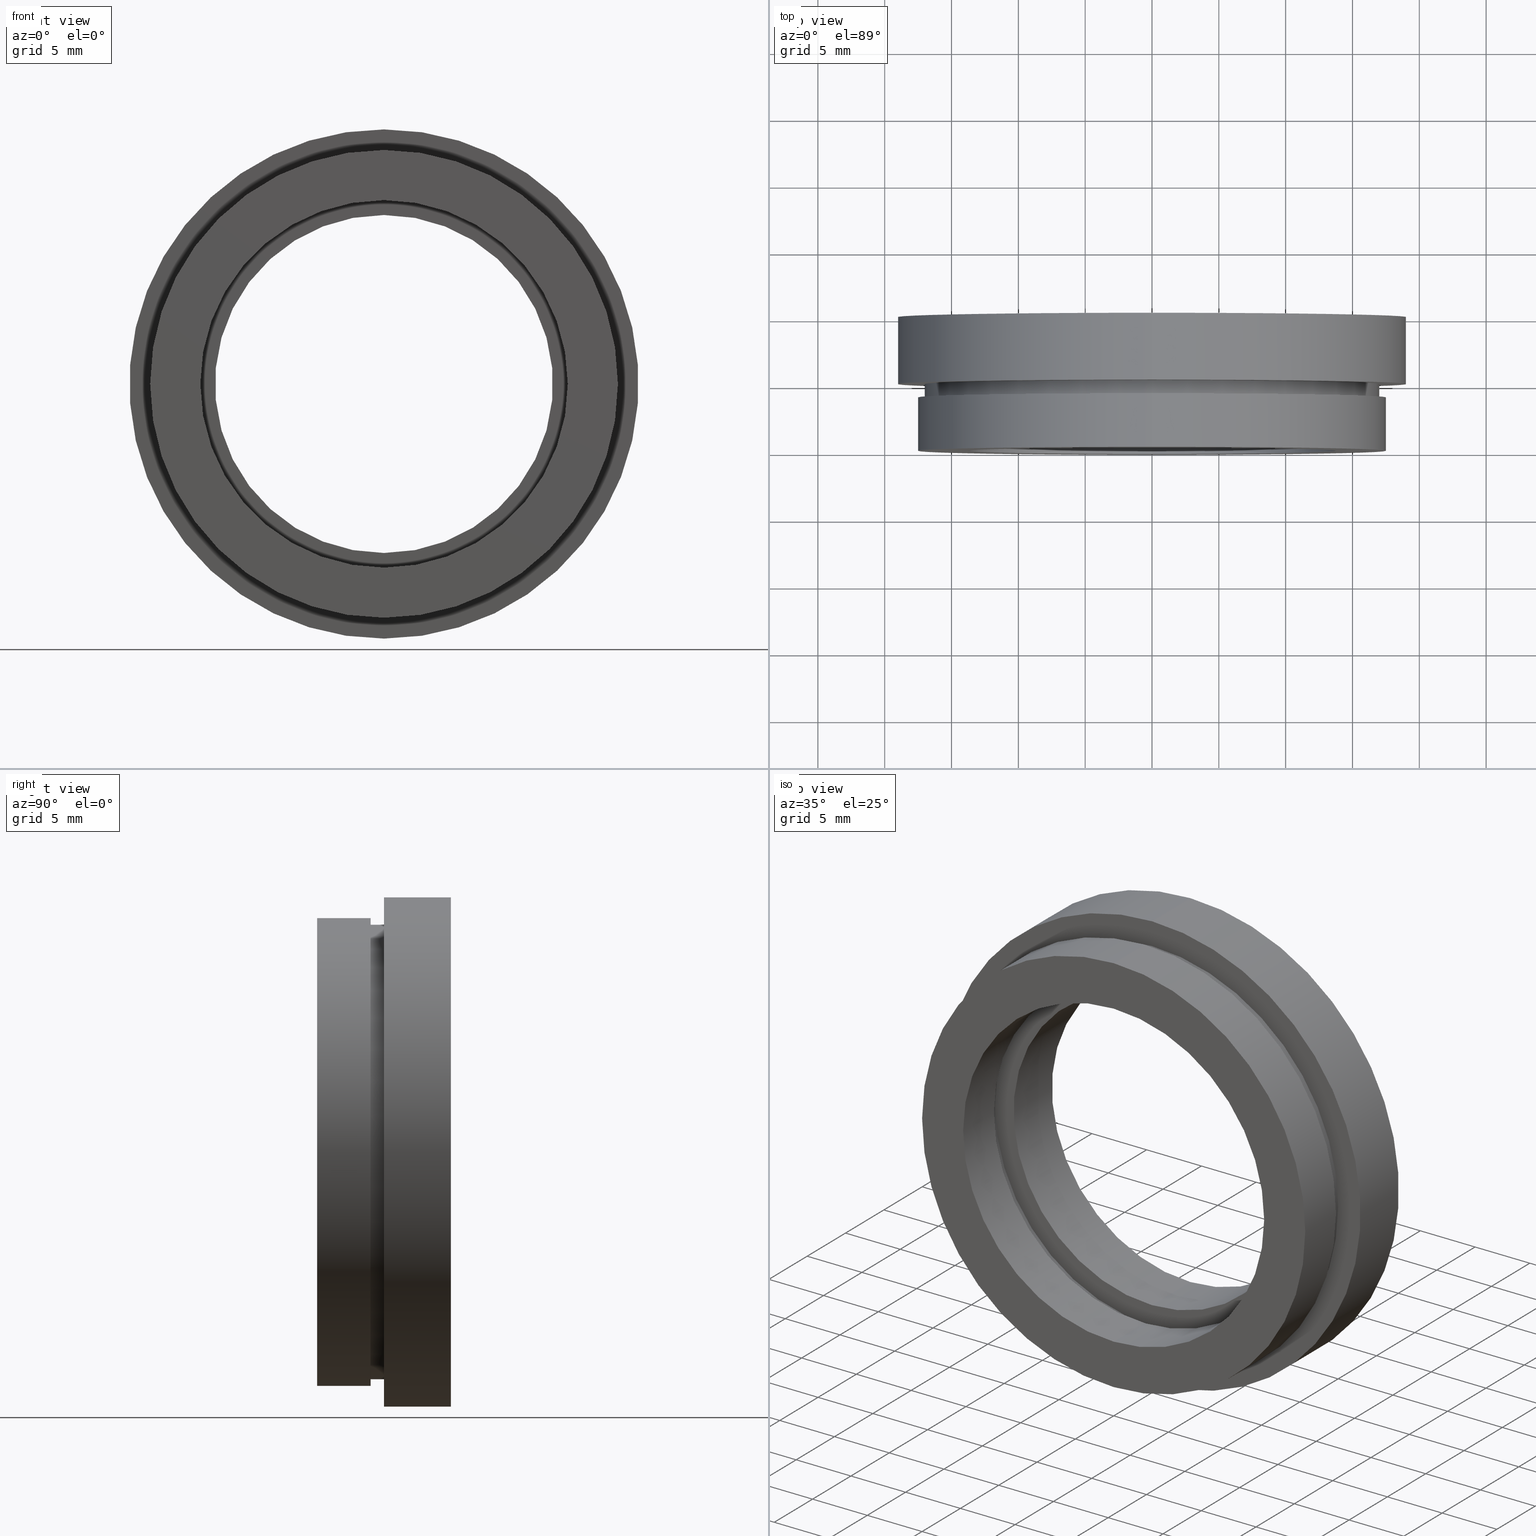
[diagram: canonical four-view strip — front | top / right | iso, engineering-drawing reading convention]
A machine part, canonical four-view strip (front | top / right | iso — engineering-drawing reading convention). The complete STEP part file that produces these views, byte-faithful:
ISO-10303-21;
HEADER;
FILE_DESCRIPTION (( 'STEP AP214' ),
    '1' );
FILE_NAME ('504121.STEP',
    '2019-10-10T07:21:21',
    ( 'user' ),
    ( '΢���й�' ),
    'SwSTEP 2.0',
    'SolidWorks 2016',
    '' );
FILE_SCHEMA (( 'AUTOMOTIVE_DESIGN' ));
ENDSEC;

DATA;
#1 = CARTESIAN_POINT ( 'NONE',  ( 0.0000000000000000000, 5.000000000000000900, 0.0000000000000000000 ) ) ;
#2 = EDGE_CURVE ( 'NONE', #239, #167, #583, .T. ) ;
#3 = ORIENTED_EDGE ( 'NONE', *, *, #417, .T. ) ;
#4 = EDGE_CURVE ( 'NONE', #142, #464, #544, .T. ) ;
#5 = ORIENTED_EDGE ( 'NONE', *, *, #614, .T. ) ;
#6 = DIRECTION ( 'NONE',  ( 0.0000000000000000000, -0.0000000000000000000, -1.000000000000000000 ) ) ;
#7 = AXIS2_PLACEMENT_3D ( 'NONE', #363, #478, #6 ) ;
#8 = CARTESIAN_POINT ( 'NONE',  ( 0.0000000000000000000, 9.999999999999998200, 0.0000000000000000000 ) ) ;
#9 = VECTOR ( 'NONE', #187, 1000.000000000000000 ) ;
#10 = SURFACE_STYLE_USAGE ( .BOTH. , #26 ) ;
#11 = ORIENTED_EDGE ( 'NONE', *, *, #381, .T. ) ;
#12 = EDGE_LOOP ( 'NONE', ( #241, #168, #47, #406 ) ) ;
#13 = ADVANCED_FACE ( 'NONE', ( #612, #594 ), #385, .F. ) ;
#14 = CARTESIAN_POINT ( 'NONE',  ( 0.0000000000000000000, 13.74468085106383300, 0.0000000000000000000 ) ) ;
#15 = CARTESIAN_POINT ( 'NONE',  ( 1.683889348827611000E-015, 13.74468085106383300, -13.75000000000000200 ) ) ;
#16 = PRESENTATION_STYLE_ASSIGNMENT (( #549 ) ) ;
#17 = EDGE_CURVE ( 'NONE', #88, #429, #117, .T. ) ;
#18 = COLOUR_RGB ( '',1.000000000000000000, 1.000000000000000000, 1.000000000000000000 ) ;
#19 = CARTESIAN_POINT ( 'NONE',  ( 0.0000000000000000000, 5.000000000000000900, 0.0000000000000000000 ) ) ;
#20 =( GEOMETRIC_REPRESENTATION_CONTEXT ( 3 ) GLOBAL_UNCERTAINTY_ASSIGNED_CONTEXT ( ( #338 ) ) GLOBAL_UNIT_ASSIGNED_CONTEXT ( ( #231, #219, #382 ) ) REPRESENTATION_CONTEXT ( 'NONE', 'WORKASPACE' ) );
#21 = EDGE_LOOP ( 'NONE', ( #393, #261, #398, #172 ) ) ;
#22 = DIRECTION ( 'NONE',  ( 0.0000000000000000000, 0.0000000000000000000, 1.000000000000000000 ) ) ;
#23 = ORIENTED_EDGE ( 'NONE', *, *, #577, .T. ) ;
#24 = FILL_AREA_STYLE ('',( #603 ) ) ;
#25 = DIRECTION ( 'NONE',  ( -0.0000000000000000000, 1.000000000000000000, -0.0000000000000000000 ) ) ;
#26 = SURFACE_SIDE_STYLE ('',( #162 ) ) ;
#27 = DIRECTION ( 'NONE',  ( -0.0000000000000000000, 1.000000000000000000, -0.0000000000000000000 ) ) ;
#28 = LINE ( 'NONE', #411, #504 ) ;
#29 = APPLICATION_PROTOCOL_DEFINITION ( 'draft international standard', 'automotive_design', 1998, #145 ) ;
#30 = EDGE_CURVE ( 'NONE', #269, #167, #414, .T. ) ;
#31 = UNCERTAINTY_MEASURE_WITH_UNIT (LENGTH_MEASURE( 1.000000000000000100E-005 ), #469, 'distance_accuracy_value', 'NONE');
#32 = DIRECTION ( 'NONE',  ( -0.0000000000000000000, 1.000000000000000000, -0.0000000000000000000 ) ) ;
#33 = VERTEX_POINT ( 'NONE', #484 ) ;
#34 = AXIS2_PLACEMENT_3D ( 'NONE', #189, #366, #412 ) ;
#35 = DIRECTION ( 'NONE',  ( -0.0000000000000000000, 1.000000000000000000, -0.0000000000000000000 ) ) ;
#36 = SURFACE_SIDE_STYLE ('',( #78 ) ) ;
#37 = CARTESIAN_POINT ( 'NONE',  ( 0.0000000000000000000, 13.74468085106383300, 19.05000000000000400 ) ) ;
#38 = DIRECTION ( 'NONE',  ( 0.0000000000000000000, 0.0000000000000000000, 1.000000000000000000 ) ) ;
#39 = CARTESIAN_POINT ( 'NONE',  ( 2.332952152375708400E-015, 9.999999999999998200, -19.05000000000000400 ) ) ;
#40 = SURFACE_STYLE_FILL_AREA ( #319 ) ;
#41 = COLOUR_RGB ( '',1.000000000000000000, 1.000000000000000000, 1.000000000000000000 ) ;
#42 = DIRECTION ( 'NONE',  ( 0.0000000000000000000, 0.0000000000000000000, 1.000000000000000000 ) ) ;
#43 = DIRECTION ( 'NONE',  ( 0.0000000000000000000, -1.000000000000000000, 0.0000000000000000000 ) ) ;
#44 = ADVANCED_BREP_SHAPE_REPRESENTATION ( '504121', ( #463, #212 ), #66 ) ;
#45 = ORIENTED_EDGE ( 'NONE', *, *, #534, .F. ) ;
#46 = LINE ( 'NONE', #444, #361 ) ;
#47 = ORIENTED_EDGE ( 'NONE', *, *, #509, .T. ) ;
#48 = EDGE_CURVE ( 'NONE', #343, #203, #419, .T. ) ;
#49 = EDGE_CURVE ( 'NONE', #539, #33, #46, .T. ) ;
#50 = SURFACE_SIDE_STYLE ('',( #40 ) ) ;
#51 = CIRCLE ( 'NONE', #446, 17.50000000000000000 ) ;
#52 = AXIS2_PLACEMENT_3D ( 'NONE', #19, #522, #22 ) ;
#53 =( NAMED_UNIT ( * ) PLANE_ANGLE_UNIT ( ) SI_UNIT ( $, .RADIAN. ) );
#54 = CIRCLE ( 'NONE', #317, 17.00000000000000000 ) ;
#55 =( NAMED_UNIT ( * ) SI_UNIT ( $, .STERADIAN. ) SOLID_ANGLE_UNIT ( ) );
#56 = PRODUCT_RELATED_PRODUCT_CATEGORY ( 'part', '', ( #475 ) ) ;
#57 = PRESENTATION_STYLE_ASSIGNMENT (( #431 ) ) ;
#58 = ORIENTED_EDGE ( 'NONE', *, *, #71, .F. ) ;
#59 = CARTESIAN_POINT ( 'NONE',  ( 0.0000000000000000000, 9.999999999999998200, 0.0000000000000000000 ) ) ;
#60 = DIRECTION ( 'NONE',  ( 0.0000000000000000000, 0.0000000000000000000, 1.000000000000000000 ) ) ;
#61 = CIRCLE ( 'NONE', #513, 17.50000000000000000 ) ;
#62 = EDGE_LOOP ( 'NONE', ( #3, #165, #311, #126 ) ) ;
#63 = SURFACE_STYLE_FILL_AREA ( #540 ) ;
#64 = AXIS2_PLACEMENT_3D ( 'NONE', #257, #537, #572 ) ;
#65 = CARTESIAN_POINT ( 'NONE',  ( 0.0000000000000000000, 4.000000000000000000, 0.0000000000000000000 ) ) ;
#66 =( GEOMETRIC_REPRESENTATION_CONTEXT ( 3 ) GLOBAL_UNCERTAINTY_ASSIGNED_CONTEXT ( ( #354 ) ) GLOBAL_UNIT_ASSIGNED_CONTEXT ( ( #221, #238, #602 ) ) REPRESENTATION_CONTEXT ( 'NONE', 'WORKASPACE' ) );
#67 = CARTESIAN_POINT ( 'NONE',  ( 0.0000000000000000000, -1.734723475976807100E-015, 0.0000000000000000000 ) ) ;
#68 = DIRECTION ( 'NONE',  ( 0.0000000000000000000, 0.0000000000000000000, 1.000000000000000000 ) ) ;
#69 = CARTESIAN_POINT ( 'NONE',  ( 0.0000000000000000000, 0.0000000000000000000, 0.0000000000000000000 ) ) ;
#70 = EDGE_CURVE ( 'NONE', #107, #464, #61, .T. ) ;
#71 = EDGE_CURVE ( 'NONE', #90, #609, #423, .T. ) ;
#72 = ORIENTED_EDGE ( 'NONE', *, *, #4, .F. ) ;
#73 = ADVANCED_FACE ( 'NONE', ( #163, #518 ), #480, .F. ) ;
#74 = DIRECTION ( 'NONE',  ( 0.0000000000000000000, 0.0000000000000000000, 1.000000000000000000 ) ) ;
#75 = PRESENTATION_LAYER_ASSIGNMENT (  '', '', ( #535 ) ) ;
#76 = ADVANCED_FACE ( 'NONE', ( #352 ), #325, .T. ) ;
#77 = FACE_OUTER_BOUND ( 'NONE', #62, .T. ) ;
#78 = SURFACE_STYLE_FILL_AREA ( #438 ) ;
#79 = COLOUR_RGB ( '',1.000000000000000000, 1.000000000000000000, 1.000000000000000000 ) ;
#80 = STYLED_ITEM ( 'NONE', ( #16 ), #463 ) ;
#81 = CARTESIAN_POINT ( 'NONE',  ( 0.0000000000000000000, 13.74468085106383300, 13.75000000000000200 ) ) ;
#82 = EDGE_LOOP ( 'NONE', ( #456, #415 ) ) ;
#83 = CARTESIAN_POINT ( 'NONE',  ( 1.757368156776451600E-015, 4.999999999999999100, -14.35000000000000000 ) ) ;
#84 = EDGE_CURVE ( 'NONE', #343, #204, #140, .T. ) ;
#85 = CIRCLE ( 'NONE', #349, 12.64500000000000100 ) ;
#86 =( GEOMETRIC_REPRESENTATION_CONTEXT ( 3 ) GLOBAL_UNCERTAINTY_ASSIGNED_CONTEXT ( ( #560 ) ) GLOBAL_UNIT_ASSIGNED_CONTEXT ( ( #591, #330, #227 ) ) REPRESENTATION_CONTEXT ( 'NONE', 'WORKASPACE' ) );
#87 = UNCERTAINTY_MEASURE_WITH_UNIT (LENGTH_MEASURE( 1.000000000000000100E-005 ), #427, 'distance_accuracy_value', 'NONE');
#88 = VERTEX_POINT ( 'NONE', #39 ) ;
#89 = DIRECTION ( 'NONE',  ( -0.0000000000000000000, 1.000000000000000000, -0.0000000000000000000 ) ) ;
#90 = VERTEX_POINT ( 'NONE', #442 ) ;
#91 = PLANE ( 'NONE',  #300 ) ;
#92 = CARTESIAN_POINT ( 'NONE',  ( 0.0000000000000000000, -1.734723475976807100E-015, 13.75000000000000000 ) ) ;
#93 = AXIS2_PLACEMENT_3D ( 'NONE', #567, #121, #613 ) ;
#94 = DIRECTION ( 'NONE',  ( 0.0000000000000000000, 0.0000000000000000000, 1.000000000000000000 ) ) ;
#95 = DIRECTION ( 'NONE',  ( 1.000000000000000000, 0.0000000000000000000, 0.0000000000000000000 ) ) ;
#96 = PRESENTATION_LAYER_ASSIGNMENT (  '', '', ( #133 ) ) ;
#97 = FACE_BOUND ( 'NONE', #320, .T. ) ;
#98 = ORIENTED_EDGE ( 'NONE', *, *, #509, .F. ) ;
#99 = CYLINDRICAL_SURFACE ( 'NONE', #186, 13.75000000000000200 ) ;
#100 = ORIENTED_EDGE ( 'NONE', *, *, #500, .T. ) ;
#101 = ORIENTED_EDGE ( 'NONE', *, *, #566, .F. ) ;
#102 = EDGE_CURVE ( 'NONE', #188, #33, #200, .T. ) ;
#103 = DIRECTION ( 'NONE',  ( 0.0000000000000000000, 0.0000000000000000000, 1.000000000000000000 ) ) ;
#104 = CARTESIAN_POINT ( 'NONE',  ( 0.0000000000000000000, 4.000000000000000000, 0.0000000000000000000 ) ) ;
#105 = DIRECTION ( 'NONE',  ( -0.0000000000000000000, 1.000000000000000000, -0.0000000000000000000 ) ) ;
#106 = STYLED_ITEM ( 'NONE', ( #156 ), #280 ) ;
#107 = VERTEX_POINT ( 'NONE', #171 ) ;
#108 = ORIENTED_EDGE ( 'NONE', *, *, #70, .T. ) ;
#109 = DIRECTION ( 'NONE',  ( -0.0000000000000000000, 1.000000000000000000, -0.0000000000000000000 ) ) ;
#110 = CARTESIAN_POINT ( 'NONE',  ( 2.081899558550500300E-015, 13.74468085106383300, -17.00000000000000000 ) ) ;
#111 = SURFACE_STYLE_FILL_AREA ( #202 ) ;
#112 = DIRECTION ( 'NONE',  ( -0.0000000000000000000, 1.000000000000000000, -0.0000000000000000000 ) ) ;
#113 = DIRECTION ( 'NONE',  ( 0.0000000000000000000, 0.0000000000000000000, 1.000000000000000000 ) ) ;
#114 = EDGE_CURVE ( 'NONE', #546, #188, #396, .T. ) ;
#115 = EDGE_LOOP ( 'NONE', ( #345, #100, #620, #426 ) ) ;
#116 = FACE_OUTER_BOUND ( 'NONE', #428, .T. ) ;
#117 = CIRCLE ( 'NONE', #139, 19.05000000000000400 ) ;
#118 = EDGE_LOOP ( 'NONE', ( #378, #192 ) ) ;
#119 = MECHANICAL_DESIGN_GEOMETRIC_PRESENTATION_REPRESENTATION (  '', ( #488 ), #86 ) ;
#120 = ADVANCED_FACE ( 'NONE', ( #77 ), #323, .T. ) ;
#121 = DIRECTION ( 'NONE',  ( -0.0000000000000000000, 1.000000000000000000, -0.0000000000000000000 ) ) ;
#122 = FACE_OUTER_BOUND ( 'NONE', #461, .T. ) ;
#123 = ADVANCED_FACE ( 'NONE', ( #470 ), #99, .F. ) ;
#124 = CARTESIAN_POINT ( 'NONE',  ( 2.143131898507868200E-015, 13.74468085106383300, -17.50000000000000000 ) ) ;
#125 = VERTEX_POINT ( 'NONE', #563 ) ;
#126 = ORIENTED_EDGE ( 'NONE', *, *, #341, .F. ) ;
#127 = ADVANCED_FACE ( 'NONE', ( #250, #116 ), #581, .F. ) ;
#128 = CIRCLE ( 'NONE', #64, 13.75000000000000200 ) ;
#129 = AXIS2_PLACEMENT_3D ( 'NONE', #160, #493, #208 ) ;
#130 = DIRECTION ( 'NONE',  ( -0.0000000000000000000, 1.000000000000000000, -0.0000000000000000000 ) ) ;
#131 = DIRECTION ( 'NONE',  ( -0.0000000000000000000, 1.000000000000000000, -0.0000000000000000000 ) ) ;
#132 = CARTESIAN_POINT ( 'NONE',  ( 0.0000000000000000000, 4.999999999999999100, 0.0000000000000000000 ) ) ;
#133 = STYLED_ITEM ( 'NONE', ( #161 ), #44 ) ;
#134 = ORIENTED_EDGE ( 'NONE', *, *, #48, .F. ) ;
#135 = DIRECTION ( 'NONE',  ( -0.0000000000000000000, 1.000000000000000000, -0.0000000000000000000 ) ) ;
#136 = CYLINDRICAL_SURFACE ( 'NONE', #587, 17.00000000000000000 ) ;
#137 = ORIENTED_EDGE ( 'NONE', *, *, #450, .T. ) ;
#138 = UNCERTAINTY_MEASURE_WITH_UNIT (LENGTH_MEASURE( 1.000000000000000100E-005 ), #252, 'distance_accuracy_value', 'NONE');
#139 = AXIS2_PLACEMENT_3D ( 'NONE', #59, #35, #38 ) ;
#140 = LINE ( 'NONE', #15, #184 ) ;
#141 = ORIENTED_EDGE ( 'NONE', *, *, #534, .T. ) ;
#142 = VERTEX_POINT ( 'NONE', #309 ) ;
#143 = DIRECTION ( 'NONE',  ( -0.0000000000000000000, 1.000000000000000000, -0.0000000000000000000 ) ) ;
#144 = VERTEX_POINT ( 'NONE', #255 ) ;
#145 = APPLICATION_CONTEXT ( 'automotive_design' ) ;
#146 = PRESENTATION_LAYER_ASSIGNMENT (  '', '', ( #80 ) ) ;
#147 = CARTESIAN_POINT ( 'NONE',  ( 0.0000000000000000000, 9.999999999999998200, 0.0000000000000000000 ) ) ;
#148 = CARTESIAN_POINT ( 'NONE',  ( 0.0000000000000000000, 4.999999999999999100, 14.35000000000000000 ) ) ;
#149 = ORIENTED_EDGE ( 'NONE', *, *, #102, .T. ) ;
#150 = EDGE_CURVE ( 'NONE', #142, #157, #471, .T. ) ;
#151 = FILL_AREA_STYLE_COLOUR ( '', #79 ) ;
#152 = DIRECTION ( 'NONE',  ( -0.0000000000000000000, 1.000000000000000000, -0.0000000000000000000 ) ) ;
#153 = PRESENTATION_LAYER_ASSIGNMENT (  '', '', ( #488 ) ) ;
#154 = PRESENTATION_STYLE_ASSIGNMENT (( #10 ) ) ;
#155 = UNCERTAINTY_MEASURE_WITH_UNIT (LENGTH_MEASURE( 1.000000000000000100E-005 ), #542, 'distance_accuracy_value', 'NONE');
#156 = PRESENTATION_STYLE_ASSIGNMENT (( #337 ) ) ;
#157 = VERTEX_POINT ( 'NONE', #601 ) ;
#158 = EDGE_LOOP ( 'NONE', ( #482, #291 ) ) ;
#159 = EDGE_LOOP ( 'NONE', ( #531, #108 ) ) ;
#160 = CARTESIAN_POINT ( 'NONE',  ( 17.50000000000000000, -4.439344646909156000E-016, 0.0000000000000000000 ) ) ;
#161 = PRESENTATION_STYLE_ASSIGNMENT (( #207 ) ) ;
#162 = SURFACE_STYLE_FILL_AREA ( #384 ) ;
#163 = FACE_OUTER_BOUND ( 'NONE', #483, .T. ) ;
#164 = MECHANICAL_DESIGN_GEOMETRIC_PRESENTATION_REPRESENTATION (  '', ( #80 ), #175 ) ;
#165 = ORIENTED_EDGE ( 'NONE', *, *, #346, .T. ) ;
#166 = COLOUR_RGB ( '',1.000000000000000000, 1.000000000000000000, 1.000000000000000000 ) ;
#167 = VERTEX_POINT ( 'NONE', #83 ) ;
#168 = ORIENTED_EDGE ( 'NONE', *, *, #517, .F. ) ;
#169 = AXIS2_PLACEMENT_3D ( 'NONE', #147, #152, #284 ) ;
#170 = CYLINDRICAL_SURFACE ( 'NONE', #410, 12.64500000000000100 ) ;
#171 = CARTESIAN_POINT ( 'NONE',  ( 2.143131898507868200E-015, 4.000000000000000000, -17.50000000000000000 ) ) ;
#172 = ORIENTED_EDGE ( 'NONE', *, *, #49, .F. ) ;
#173 = ORIENTED_EDGE ( 'NONE', *, *, #283, .T. ) ;
#174 = DIRECTION ( 'NONE',  ( 0.0000000000000000000, 0.0000000000000000000, 1.000000000000000000 ) ) ;
#175 =( GEOMETRIC_REPRESENTATION_CONTEXT ( 3 ) GLOBAL_UNCERTAINTY_ASSIGNED_CONTEXT ( ( #387 ) ) GLOBAL_UNIT_ASSIGNED_CONTEXT ( ( #225, #547, #460 ) ) REPRESENTATION_CONTEXT ( 'NONE', 'WORKASPACE' ) );
#176 = CIRCLE ( 'NONE', #371, 14.35000000000000100 ) ;
#177 = COLOUR_RGB ( '',1.000000000000000000, 1.000000000000000000, 1.000000000000000000 ) ;
#178 = CIRCLE ( 'NONE', #496, 14.35000000000000100 ) ;
#179 = AXIS2_PLACEMENT_3D ( 'NONE', #1, #525, #74 ) ;
#180 = ADVANCED_FACE ( 'NONE', ( #538 ), #267, .F. ) ;
#181 = ORIENTED_EDGE ( 'NONE', *, *, #84, .T. ) ;
#182 = EDGE_CURVE ( 'NONE', #125, #90, #85, .T. ) ;
#183 = CARTESIAN_POINT ( 'NONE',  ( 0.0000000000000000000, 13.74468085106383300, 0.0000000000000000000 ) ) ;
#184 = VECTOR ( 'NONE', #25, 1000.000000000000000 ) ;
#185 = DIRECTION ( 'NONE',  ( 0.0000000000000000000, -0.0000000000000000000, -1.000000000000000000 ) ) ;
#186 = AXIS2_PLACEMENT_3D ( 'NONE', #290, #421, #553 ) ;
#187 = DIRECTION ( 'NONE',  ( -0.0000000000000000000, 1.000000000000000000, -0.0000000000000000000 ) ) ;
#188 = VERTEX_POINT ( 'NONE', #274 ) ;
#189 = CARTESIAN_POINT ( 'NONE',  ( 0.0000000000000000000, 13.74468085106383300, 0.0000000000000000000 ) ) ;
#190 = DIRECTION ( 'NONE',  ( -0.0000000000000000000, 1.000000000000000000, -0.0000000000000000000 ) ) ;
#191 = DIRECTION ( 'NONE',  ( -0.0000000000000000000, 1.000000000000000000, 0.0000000000000000000 ) ) ;
#192 = ORIENTED_EDGE ( 'NONE', *, *, #248, .F. ) ;
#193 = CARTESIAN_POINT ( 'NONE',  ( 1.757368156776452000E-015, 13.74468085106383300, -14.35000000000000100 ) ) ;
#194 = VECTOR ( 'NONE', #599, 1000.000000000000000 ) ;
#195 = DIRECTION ( 'NONE',  ( 0.0000000000000000000, 0.0000000000000000000, 1.000000000000000000 ) ) ;
#196 = PRODUCT_CONTEXT ( 'NONE', #145, 'mechanical' ) ;
#197 = STYLED_ITEM ( 'NONE', ( #530 ), #467 ) ;
#198 = DIRECTION ( 'NONE',  ( -0.0000000000000000000, 1.000000000000000000, -0.0000000000000000000 ) ) ;
#199 = MECHANICAL_DESIGN_GEOMETRIC_PRESENTATION_REPRESENTATION (  '', ( #519 ), #433 ) ;
#200 = CIRCLE ( 'NONE', #52, 17.00000000000000000 ) ;
#201 = DIRECTION ( 'NONE',  ( 0.0000000000000000000, 0.0000000000000000000, 1.000000000000000000 ) ) ;
#202 = FILL_AREA_STYLE ('',( #151 ) ) ;
#203 = VERTEX_POINT ( 'NONE', #92 ) ;
#204 = VERTEX_POINT ( 'NONE', #335 ) ;
#205 = AXIS2_PLACEMENT_3D ( 'NONE', #495, #191, #473 ) ;
#206 = APPLICATION_CONTEXT ( 'automotive_design' ) ;
#207 = SURFACE_STYLE_USAGE ( .BOTH. , #36 ) ;
#208 = DIRECTION ( 'NONE',  ( 0.0000000000000000000, 0.0000000000000000000, 1.000000000000000000 ) ) ;
#209 = FILL_AREA_STYLE_COLOUR ( '', #41 ) ;
#210 = PRESENTATION_LAYER_ASSIGNMENT (  '', '', ( #197 ) ) ;
#211 = APPLICATION_PROTOCOL_DEFINITION ( 'draft international standard', 'automotive_design', 1998, #206 ) ;
#212 = AXIS2_PLACEMENT_3D ( 'NONE', #402, #201, #95 ) ;
#213 = ORIENTED_EDGE ( 'NONE', *, *, #251, .T. ) ;
#214 = PRODUCT_DEFINITION_SHAPE ( 'NONE', 'NONE',  #230 ) ;
#215 = EDGE_CURVE ( 'NONE', #539, #546, #54, .T. ) ;
#216 = FACE_OUTER_BOUND ( 'NONE', #115, .T. ) ;
#217 = SURFACE_SIDE_STYLE ('',( #339 ) ) ;
#218 = ORIENTED_EDGE ( 'NONE', *, *, #150, .T. ) ;
#219 =( NAMED_UNIT ( * ) PLANE_ANGLE_UNIT ( ) SI_UNIT ( $, .RADIAN. ) );
#220 = PLANE ( 'NONE',  #454 ) ;
#221 =( LENGTH_UNIT ( ) NAMED_UNIT ( * ) SI_UNIT ( .MILLI., .METRE. ) );
#222 =( NAMED_UNIT ( * ) SI_UNIT ( $, .STERADIAN. ) SOLID_ANGLE_UNIT ( ) );
#223 = DIRECTION ( 'NONE',  ( 0.0000000000000000000, 0.0000000000000000000, 1.000000000000000000 ) ) ;
#224 = ORIENTED_EDGE ( 'NONE', *, *, #4, .T. ) ;
#225 =( LENGTH_UNIT ( ) NAMED_UNIT ( * ) SI_UNIT ( .MILLI., .METRE. ) );
#226 = MECHANICAL_DESIGN_GEOMETRIC_PRESENTATION_REPRESENTATION (  '', ( #197 ), #242 ) ;
#227 =( NAMED_UNIT ( * ) SI_UNIT ( $, .STERADIAN. ) SOLID_ANGLE_UNIT ( ) );
#228 = ADVANCED_FACE ( 'NONE', ( #436, #554 ), #220, .F. ) ;
#229 = CIRCLE ( 'NONE', #408, 19.05000000000000400 ) ;
#230 = PRODUCT_DEFINITION ( 'δ֪', '', #364, #365 ) ;
#231 =( LENGTH_UNIT ( ) NAMED_UNIT ( * ) SI_UNIT ( .MILLI., .METRE. ) );
#232 = CARTESIAN_POINT ( 'NONE',  ( 0.0000000000000000000, 4.000000000000000000, 17.00000000000000000 ) ) ;
#233 = ORIENTED_EDGE ( 'NONE', *, *, #523, .F. ) ;
#234 = ORIENTED_EDGE ( 'NONE', *, *, #312, .T. ) ;
#235 = DIRECTION ( 'NONE',  ( 0.0000000000000000000, 0.0000000000000000000, 1.000000000000000000 ) ) ;
#236 = DIRECTION ( 'NONE',  ( -0.0000000000000000000, 1.000000000000000000, -0.0000000000000000000 ) ) ;
#237 = AXIS2_PLACEMENT_3D ( 'NONE', #243, #597, #619 ) ;
#238 =( NAMED_UNIT ( * ) PLANE_ANGLE_UNIT ( ) SI_UNIT ( $, .RADIAN. ) );
#239 = VERTEX_POINT ( 'NONE', #344 ) ;
#240 = DIRECTION ( 'NONE',  ( -0.0000000000000000000, 1.000000000000000000, -0.0000000000000000000 ) ) ;
#241 = ORIENTED_EDGE ( 'NONE', *, *, #2, .F. ) ;
#242 =( GEOMETRIC_REPRESENTATION_CONTEXT ( 3 ) GLOBAL_UNCERTAINTY_ASSIGNED_CONTEXT ( ( #271 ) ) GLOBAL_UNIT_ASSIGNED_CONTEXT ( ( #404, #590, #622 ) ) REPRESENTATION_CONTEXT ( 'NONE', 'WORKASPACE' ) );
#243 = CARTESIAN_POINT ( 'NONE',  ( 0.0000000000000000000, 4.999999999999999100, 0.0000000000000000000 ) ) ;
#244 = CARTESIAN_POINT ( 'NONE',  ( 0.0000000000000000000, 5.000000000000000900, 0.0000000000000000000 ) ) ;
#245 = FACE_BOUND ( 'NONE', #407, .T. ) ;
#246 = DIRECTION ( 'NONE',  ( -0.0000000000000000000, 1.000000000000000000, 0.0000000000000000000 ) ) ;
#247 = SURFACE_STYLE_USAGE ( .BOTH. , #564 ) ;
#248 = EDGE_CURVE ( 'NONE', #157, #142, #298, .T. ) ;
#249 = ORIENTED_EDGE ( 'NONE', *, *, #48, .T. ) ;
#250 = FACE_BOUND ( 'NONE', #310, .T. ) ;
#251 = EDGE_CURVE ( 'NONE', #33, #188, #611, .T. ) ;
#252 =( LENGTH_UNIT ( ) NAMED_UNIT ( * ) SI_UNIT ( .MILLI., .METRE. ) );
#253 = ORIENTED_EDGE ( 'NONE', *, *, #566, .T. ) ;
#254 = CARTESIAN_POINT ( 'NONE',  ( 0.0000000000000000000, 5.000000000000000900, 0.0000000000000000000 ) ) ;
#255 = CARTESIAN_POINT ( 'NONE',  ( 2.332952152375708400E-015, 5.000000000000000900, -19.05000000000000400 ) ) ;
#256 = AXIS2_PLACEMENT_3D ( 'NONE', #69, #374, #68 ) ;
#257 = CARTESIAN_POINT ( 'NONE',  ( 0.0000000000000000000, 4.000000000000000000, 0.0000000000000000000 ) ) ;
#258 = CARTESIAN_POINT ( 'NONE',  ( 0.0000000000000000000, 0.0000000000000000000, 0.0000000000000000000 ) ) ;
#259 = DIRECTION ( 'NONE',  ( -0.0000000000000000000, 1.000000000000000000, -0.0000000000000000000 ) ) ;
#260 = VERTEX_POINT ( 'NONE', #390 ) ;
#261 = ORIENTED_EDGE ( 'NONE', *, *, #114, .T. ) ;
#262 = FACE_OUTER_BOUND ( 'NONE', #159, .T. ) ;
#263 = COLOUR_RGB ( '',1.000000000000000000, 1.000000000000000000, 1.000000000000000000 ) ;
#264 = AXIS2_PLACEMENT_3D ( 'NONE', #575, #448, #94 ) ;
#265 = DIRECTION ( 'NONE',  ( -0.0000000000000000000, 1.000000000000000000, -0.0000000000000000000 ) ) ;
#266 = SURFACE_SIDE_STYLE ('',( #63 ) ) ;
#267 = CYLINDRICAL_SURFACE ( 'NONE', #359, 14.35000000000000100 ) ;
#268 = EDGE_LOOP ( 'NONE', ( #521, #11 ) ) ;
#269 = VERTEX_POINT ( 'NONE', #148 ) ;
#270 = DIRECTION ( 'NONE',  ( 0.0000000000000000000, 0.0000000000000000000, 1.000000000000000000 ) ) ;
#271 = UNCERTAINTY_MEASURE_WITH_UNIT (LENGTH_MEASURE( 1.000000000000000100E-005 ), #404, 'distance_accuracy_value', 'NONE');
#272 = ADVANCED_FACE ( 'NONE', ( #459 ), #136, .T. ) ;
#273 = ORIENTED_EDGE ( 'NONE', *, *, #589, .F. ) ;
#274 = CARTESIAN_POINT ( 'NONE',  ( 2.081899558550500300E-015, 5.000000000000000900, -17.00000000000000000 ) ) ;
#275 = AXIS2_PLACEMENT_3D ( 'NONE', #183, #135, #42 ) ;
#276 = ADVANCED_FACE ( 'NONE', ( #570 ), #316, .F. ) ;
#277 = VECTOR ( 'NONE', #259, 1000.000000000000000 ) ;
#278 = COLOUR_RGB ( '',1.000000000000000000, 1.000000000000000000, 1.000000000000000000 ) ;
#279 = DIRECTION ( 'NONE',  ( 0.0000000000000000000, 0.0000000000000000000, 1.000000000000000000 ) ) ;
#280 = ADVANCED_FACE ( 'NONE', ( #499 ), #455, .F. ) ;
#281 = SURFACE_SIDE_STYLE ('',( #111 ) ) ;
#282 = ORIENTED_EDGE ( 'NONE', *, *, #472, .F. ) ;
#283 = EDGE_CURVE ( 'NONE', #400, #204, #498, .T. ) ;
#284 = DIRECTION ( 'NONE',  ( 0.0000000000000000000, 0.0000000000000000000, 1.000000000000000000 ) ) ;
#285 = COLOUR_RGB ( '',1.000000000000000000, 1.000000000000000000, 1.000000000000000000 ) ;
#286 =( GEOMETRIC_REPRESENTATION_CONTEXT ( 3 ) GLOBAL_UNCERTAINTY_ASSIGNED_CONTEXT ( ( #155 ) ) GLOBAL_UNIT_ASSIGNED_CONTEXT ( ( #542, #53, #492 ) ) REPRESENTATION_CONTEXT ( 'NONE', 'WORKASPACE' ) );
#287 = FILL_AREA_STYLE_COLOUR ( '', #177 ) ;
#288 = ORIENTED_EDGE ( 'NONE', *, *, #215, .F. ) ;
#289 = DIRECTION ( 'NONE',  ( -0.0000000000000000000, 1.000000000000000000, -0.0000000000000000000 ) ) ;
#290 = CARTESIAN_POINT ( 'NONE',  ( 0.0000000000000000000, 13.74468085106383300, 0.0000000000000000000 ) ) ;
#291 = ORIENTED_EDGE ( 'NONE', *, *, #450, .F. ) ;
#292 = DIRECTION ( 'NONE',  ( -0.0000000000000000000, 1.000000000000000000, -0.0000000000000000000 ) ) ;
#293 = CARTESIAN_POINT ( 'NONE',  ( 0.0000000000000000000, 13.74468085106383300, 17.50000000000000000 ) ) ;
#294 = VECTOR ( 'NONE', #487, 1000.000000000000000 ) ;
#295 = DIRECTION ( 'NONE',  ( 0.0000000000000000000, 0.0000000000000000000, 1.000000000000000000 ) ) ;
#296 = EDGE_LOOP ( 'NONE', ( #213, #149 ) ) ;
#297 = DIRECTION ( 'NONE',  ( -0.0000000000000000000, 1.000000000000000000, -0.0000000000000000000 ) ) ;
#298 = CIRCLE ( 'NONE', #388, 17.50000000000000000 ) ;
#299 = EDGE_LOOP ( 'NONE', ( #392, #360, #253, #98 ) ) ;
#300 = AXIS2_PLACEMENT_3D ( 'NONE', #541, #370, #329 ) ;
#301 = MECHANICAL_DESIGN_GEOMETRIC_PRESENTATION_REPRESENTATION (  '', ( #133 ), #308 ) ;
#302 = DIRECTION ( 'NONE',  ( -0.0000000000000000000, 1.000000000000000000, -0.0000000000000000000 ) ) ;
#303 = DIRECTION ( 'NONE',  ( 0.0000000000000000000, 0.0000000000000000000, 1.000000000000000000 ) ) ;
#304 = ORIENTED_EDGE ( 'NONE', *, *, #347, .T. ) ;
#305 = DIRECTION ( 'NONE',  ( 0.0000000000000000000, 0.0000000000000000000, 1.000000000000000000 ) ) ;
#306 = LINE ( 'NONE', #81, #294 ) ;
#307 = PRESENTATION_LAYER_ASSIGNMENT (  '', '', ( #106 ) ) ;
#308 =( GEOMETRIC_REPRESENTATION_CONTEXT ( 3 ) GLOBAL_UNCERTAINTY_ASSIGNED_CONTEXT ( ( #31 ) ) GLOBAL_UNIT_ASSIGNED_CONTEXT ( ( #469, #340, #318 ) ) REPRESENTATION_CONTEXT ( 'NONE', 'WORKASPACE' ) );
#309 = CARTESIAN_POINT ( 'NONE',  ( 0.0000000000000000000, 0.0000000000000000000, 17.50000000000000000 ) ) ;
#310 = EDGE_LOOP ( 'NONE', ( #273, #45 ) ) ;
#311 = ORIENTED_EDGE ( 'NONE', *, *, #551, .F. ) ;
#312 = EDGE_CURVE ( 'NONE', #144, #445, #506, .T. ) ;
#313 = CIRCLE ( 'NONE', #169, 12.64500000000000100 ) ;
#314 = CIRCLE ( 'NONE', #543, 17.00000000000000000 ) ;
#315 = DIRECTION ( 'NONE',  ( -0.0000000000000000000, 1.000000000000000000, -0.0000000000000000000 ) ) ;
#316 = CYLINDRICAL_SURFACE ( 'NONE', #342, 13.75000000000000200 ) ;
#317 = AXIS2_PLACEMENT_3D ( 'NONE', #373, #292, #174 ) ;
#318 =( NAMED_UNIT ( * ) SI_UNIT ( $, .STERADIAN. ) SOLID_ANGLE_UNIT ( ) );
#319 = FILL_AREA_STYLE ('',( #600 ) ) ;
#320 = EDGE_LOOP ( 'NONE', ( #326, #249 ) ) ;
#321 = VECTOR ( 'NONE', #596, 1000.000000000000000 ) ;
#322 = SURFACE_STYLE_FILL_AREA ( #394 ) ;
#323 = CYLINDRICAL_SURFACE ( 'NONE', #556, 19.05000000000000400 ) ;
#324 = CYLINDRICAL_SURFACE ( 'NONE', #264, 19.05000000000000400 ) ;
#325 = CYLINDRICAL_SURFACE ( 'NONE', #34, 17.50000000000000000 ) ;
#326 = ORIENTED_EDGE ( 'NONE', *, *, #585, .T. ) ;
#327 = ORIENTED_EDGE ( 'NONE', *, *, #84, .F. ) ;
#328 = ADVANCED_FACE ( 'NONE', ( #424 ), #324, .T. ) ;
#329 = DIRECTION ( 'NONE',  ( 0.0000000000000000000, -0.0000000000000000000, -1.000000000000000000 ) ) ;
#330 =( NAMED_UNIT ( * ) PLANE_ANGLE_UNIT ( ) SI_UNIT ( $, .RADIAN. ) );
#331 = PRESENTATION_LAYER_ASSIGNMENT (  '', '', ( #519 ) ) ;
#332 = CIRCLE ( 'NONE', #458, 13.75000000000000000 ) ;
#333 = PRESENTATION_STYLE_ASSIGNMENT (( #367 ) ) ;
#334 = DIRECTION ( 'NONE',  ( 0.0000000000000000000, 0.0000000000000000000, 1.000000000000000000 ) ) ;
#335 = CARTESIAN_POINT ( 'NONE',  ( 1.683889348827611000E-015, 4.000000000000000000, -13.75000000000000200 ) ) ;
#336 = ORIENTED_EDGE ( 'NONE', *, *, #500, .F. ) ;
#337 = SURFACE_STYLE_USAGE ( .BOTH. , #353 ) ;
#338 = UNCERTAINTY_MEASURE_WITH_UNIT (LENGTH_MEASURE( 1.000000000000000100E-005 ), #231, 'distance_accuracy_value', 'NONE');
#339 = SURFACE_STYLE_FILL_AREA ( #586 ) ;
#340 =( NAMED_UNIT ( * ) PLANE_ANGLE_UNIT ( ) SI_UNIT ( $, .RADIAN. ) );
#341 = EDGE_CURVE ( 'NONE', #445, #429, #358, .T. ) ;
#342 = AXIS2_PLACEMENT_3D ( 'NONE', #520, #481, #103 ) ;
#343 = VERTEX_POINT ( 'NONE', #486 ) ;
#344 = CARTESIAN_POINT ( 'NONE',  ( 1.757368156776452000E-015, 4.000000000000000000, -14.35000000000000100 ) ) ;
#345 = ORIENTED_EDGE ( 'NONE', *, *, #114, .F. ) ;
#346 = EDGE_CURVE ( 'NONE', #144, #88, #409, .T. ) ;
#347 = EDGE_CURVE ( 'NONE', #203, #400, #306, .T. ) ;
#348 = ORIENTED_EDGE ( 'NONE', *, *, #346, .F. ) ;
#349 = AXIS2_PLACEMENT_3D ( 'NONE', #244, #552, #550 ) ;
#350 = CARTESIAN_POINT ( 'NONE',  ( 2.332952152375708400E-015, 13.74468085106383300, -19.05000000000000400 ) ) ;
#351 = DIRECTION ( 'NONE',  ( -0.0000000000000000000, 1.000000000000000000, -0.0000000000000000000 ) ) ;
#352 = FACE_OUTER_BOUND ( 'NONE', #380, .T. ) ;
#353 = SURFACE_SIDE_STYLE ('',( #452 ) ) ;
#354 = UNCERTAINTY_MEASURE_WITH_UNIT (LENGTH_MEASURE( 1.000000000000000100E-005 ), #221, 'distance_accuracy_value', 'NONE');
#355 = DIRECTION ( 'NONE',  ( 0.0000000000000000000, 0.0000000000000000000, 1.000000000000000000 ) ) ;
#356 = ORIENTED_EDGE ( 'NONE', *, *, #182, .F. ) ;
#357 = ORIENTED_EDGE ( 'NONE', *, *, #71, .T. ) ;
#358 = LINE ( 'NONE', #37, #372 ) ;
#359 = AXIS2_PLACEMENT_3D ( 'NONE', #615, #302, #195 ) ;
#360 = ORIENTED_EDGE ( 'NONE', *, *, #2, .T. ) ;
#361 = VECTOR ( 'NONE', #289, 1000.000000000000000 ) ;
#362 = ORIENTED_EDGE ( 'NONE', *, *, #577, .F. ) ;
#363 = CARTESIAN_POINT ( 'NONE',  ( 12.64500000000000100, 9.999999999999998200, 0.0000000000000000000 ) ) ;
#364 = PRODUCT_DEFINITION_FORMATION_WITH_SPECIFIED_SOURCE ( '�κ�', '', #475, .NOT_KNOWN. ) ;
#365 = PRODUCT_DEFINITION_CONTEXT ( 'detailed design', #206, 'design' ) ;
#366 = DIRECTION ( 'NONE',  ( -0.0000000000000000000, 1.000000000000000000, -0.0000000000000000000 ) ) ;
#367 = SURFACE_STYLE_USAGE ( .BOTH. , #217 ) ;
#368 = EDGE_LOOP ( 'NONE', ( #134, #181, #137, #420 ) ) ;
#369 = EDGE_LOOP ( 'NONE', ( #348, #234, #578, #582 ) ) ;
#370 = DIRECTION ( 'NONE',  ( 0.0000000000000000000, -1.000000000000000000, 0.0000000000000000000 ) ) ;
#371 = AXIS2_PLACEMENT_3D ( 'NONE', #65, #240, #434 ) ;
#372 = VECTOR ( 'NONE', #198, 1000.000000000000000 ) ;
#373 = CARTESIAN_POINT ( 'NONE',  ( 0.0000000000000000000, 4.000000000000000000, 0.0000000000000000000 ) ) ;
#374 = DIRECTION ( 'NONE',  ( -0.0000000000000000000, 1.000000000000000000, -0.0000000000000000000 ) ) ;
#375 = DIRECTION ( 'NONE',  ( 0.0000000000000000000, 0.0000000000000000000, 1.000000000000000000 ) ) ;
#376 = ADVANCED_FACE ( 'NONE', ( #245, #262 ), #91, .F. ) ;
#377 = CARTESIAN_POINT ( 'NONE',  ( 0.0000000000000000000, 13.74468085106383300, 12.64500000000000100 ) ) ;
#378 = ORIENTED_EDGE ( 'NONE', *, *, #150, .F. ) ;
#379 = CARTESIAN_POINT ( 'NONE',  ( 14.35000000000000000, 4.999999999999999100, 0.0000000000000000000 ) ) ;
#380 = EDGE_LOOP ( 'NONE', ( #218, #23, #233, #72 ) ) ;
#381 = EDGE_CURVE ( 'NONE', #239, #399, #178, .T. ) ;
#382 =( NAMED_UNIT ( * ) SI_UNIT ( $, .STERADIAN. ) SOLID_ANGLE_UNIT ( ) );
#383 = CARTESIAN_POINT ( 'NONE',  ( 0.0000000000000000000, 13.74468085106383300, 0.0000000000000000000 ) ) ;
#384 = FILL_AREA_STYLE ('',( #209 ) ) ;
#385 = PLANE ( 'NONE',  #205 ) ;
#386 =( NAMED_UNIT ( * ) PLANE_ANGLE_UNIT ( ) SI_UNIT ( $, .RADIAN. ) );
#387 = UNCERTAINTY_MEASURE_WITH_UNIT (LENGTH_MEASURE( 1.000000000000000100E-005 ), #225, 'distance_accuracy_value', 'NONE');
#388 = AXIS2_PLACEMENT_3D ( 'NONE', #258, #265, #270 ) ;
#389 = CARTESIAN_POINT ( 'NONE',  ( 0.0000000000000000000, 4.000000000000000000, 0.0000000000000000000 ) ) ;
#390 = CARTESIAN_POINT ( 'NONE',  ( 0.0000000000000000000, 9.999999999999998200, 12.64500000000000100 ) ) ;
#391 = CARTESIAN_POINT ( 'NONE',  ( 0.0000000000000000000, 9.999999999999998200, 0.0000000000000000000 ) ) ;
#392 = ORIENTED_EDGE ( 'NONE', *, *, #381, .F. ) ;
#393 = ORIENTED_EDGE ( 'NONE', *, *, #215, .T. ) ;
#394 = FILL_AREA_STYLE ('',( #437 ) ) ;
#395 = DIRECTION ( 'NONE',  ( -0.0000000000000000000, 1.000000000000000000, -0.0000000000000000000 ) ) ;
#396 = LINE ( 'NONE', #110, #321 ) ;
#397 = DIRECTION ( 'NONE',  ( 0.0000000000000000000, 0.0000000000000000000, 1.000000000000000000 ) ) ;
#398 = ORIENTED_EDGE ( 'NONE', *, *, #251, .F. ) ;
#399 = VERTEX_POINT ( 'NONE', #607 ) ;
#400 = VERTEX_POINT ( 'NONE', #559 ) ;
#401 = AXIS2_PLACEMENT_3D ( 'NONE', #435, #315, #113 ) ;
#402 = CARTESIAN_POINT ( 'NONE',  ( 0.0000000000000000000, 0.0000000000000000000, 0.0000000000000000000 ) ) ;
#403 = CARTESIAN_POINT ( 'NONE',  ( 0.0000000000000000000, 5.000000000000000900, 0.0000000000000000000 ) ) ;
#404 =( LENGTH_UNIT ( ) NAMED_UNIT ( * ) SI_UNIT ( .MILLI., .METRE. ) );
#405 = ORIENTED_EDGE ( 'NONE', *, *, #551, .T. ) ;
#406 = ORIENTED_EDGE ( 'NONE', *, *, #30, .T. ) ;
#407 = EDGE_LOOP ( 'NONE', ( #288, #336 ) ) ;
#408 = AXIS2_PLACEMENT_3D ( 'NONE', #254, #418, #468 ) ;
#409 = LINE ( 'NONE', #350, #277 ) ;
#410 = AXIS2_PLACEMENT_3D ( 'NONE', #383, #27, #295 ) ;
#411 = CARTESIAN_POINT ( 'NONE',  ( 0.0000000000000000000, 13.74468085106383300, 14.35000000000000100 ) ) ;
#412 = DIRECTION ( 'NONE',  ( 0.0000000000000000000, 0.0000000000000000000, 1.000000000000000000 ) ) ;
#413 = EDGE_LOOP ( 'NONE', ( #327, #565, #304, #173 ) ) ;
#414 = CIRCLE ( 'NONE', #237, 14.35000000000000000 ) ;
#415 = ORIENTED_EDGE ( 'NONE', *, *, #312, .F. ) ;
#416 = DIRECTION ( 'NONE',  ( 0.0000000000000000000, 0.0000000000000000000, 1.000000000000000000 ) ) ;
#417 = EDGE_CURVE ( 'NONE', #445, #144, #229, .T. ) ;
#418 = DIRECTION ( 'NONE',  ( -0.0000000000000000000, 1.000000000000000000, -0.0000000000000000000 ) ) ;
#419 = CIRCLE ( 'NONE', #527, 13.75000000000000000 ) ;
#420 = ORIENTED_EDGE ( 'NONE', *, *, #347, .F. ) ;
#421 = DIRECTION ( 'NONE',  ( -0.0000000000000000000, 1.000000000000000000, -0.0000000000000000000 ) ) ;
#422 = SHAPE_DEFINITION_REPRESENTATION ( #214, #44 ) ;
#423 = LINE ( 'NONE', #558, #9 ) ;
#424 = FACE_OUTER_BOUND ( 'NONE', #369, .T. ) ;
#425 = CARTESIAN_POINT ( 'NONE',  ( 0.0000000000000000000, 13.74468085106383300, 0.0000000000000000000 ) ) ;
#426 = ORIENTED_EDGE ( 'NONE', *, *, #102, .F. ) ;
#427 =( LENGTH_UNIT ( ) NAMED_UNIT ( * ) SI_UNIT ( .MILLI., .METRE. ) );
#428 = EDGE_LOOP ( 'NONE', ( #405, #503 ) ) ;
#429 = VERTEX_POINT ( 'NONE', #502 ) ;
#430 = DIRECTION ( 'NONE',  ( -0.0000000000000000000, 1.000000000000000000, -0.0000000000000000000 ) ) ;
#431 = SURFACE_STYLE_USAGE ( .BOTH. , #266 ) ;
#432 = AXIS2_PLACEMENT_3D ( 'NONE', #403, #297, #528 ) ;
#433 =( GEOMETRIC_REPRESENTATION_CONTEXT ( 3 ) GLOBAL_UNCERTAINTY_ASSIGNED_CONTEXT ( ( #87 ) ) GLOBAL_UNIT_ASSIGNED_CONTEXT ( ( #427, #604, #222 ) ) REPRESENTATION_CONTEXT ( 'NONE', 'WORKASPACE' ) );
#434 = DIRECTION ( 'NONE',  ( 0.0000000000000000000, 0.0000000000000000000, 1.000000000000000000 ) ) ;
#435 = CARTESIAN_POINT ( 'NONE',  ( 0.0000000000000000000, 13.74468085106383300, 0.0000000000000000000 ) ) ;
#436 = FACE_BOUND ( 'NONE', #158, .T. ) ;
#437 = FILL_AREA_STYLE_COLOUR ( '', #285 ) ;
#438 = FILL_AREA_STYLE ('',( #287 ) ) ;
#439 = CARTESIAN_POINT ( 'NONE',  ( 0.0000000000000000000, 4.000000000000000000, 17.50000000000000000 ) ) ;
#440 = FACE_OUTER_BOUND ( 'NONE', #299, .T. ) ;
#441 = FACE_OUTER_BOUND ( 'NONE', #118, .T. ) ;
#442 = CARTESIAN_POINT ( 'NONE',  ( 1.548565877521828400E-015, 5.000000000000000900, -12.64500000000000100 ) ) ;
#443 = AXIS2_PLACEMENT_3D ( 'NONE', #389, #130, #397 ) ;
#444 = CARTESIAN_POINT ( 'NONE',  ( 0.0000000000000000000, 13.74468085106383300, 17.00000000000000000 ) ) ;
#445 = VERTEX_POINT ( 'NONE', #616 ) ;
#446 = AXIS2_PLACEMENT_3D ( 'NONE', #104, #474, #235 ) ;
#447 = ORIENTED_EDGE ( 'NONE', *, *, #614, .F. ) ;
#448 = DIRECTION ( 'NONE',  ( -0.0000000000000000000, 1.000000000000000000, -0.0000000000000000000 ) ) ;
#449 = CYLINDRICAL_SURFACE ( 'NONE', #401, 17.50000000000000000 ) ;
#450 = EDGE_CURVE ( 'NONE', #204, #400, #128, .T. ) ;
#451 = DIRECTION ( 'NONE',  ( -0.0000000000000000000, 1.000000000000000000, -0.0000000000000000000 ) ) ;
#452 = SURFACE_STYLE_FILL_AREA ( #24 ) ;
#453 = VECTOR ( 'NONE', #143, 1000.000000000000000 ) ;
#454 = AXIS2_PLACEMENT_3D ( 'NONE', #593, #43, #185 ) ;
#455 = CYLINDRICAL_SURFACE ( 'NONE', #275, 12.64500000000000100 ) ;
#456 = ORIENTED_EDGE ( 'NONE', *, *, #417, .F. ) ;
#457 = AXIS2_PLACEMENT_3D ( 'NONE', #379, #246, #592 ) ;
#458 = AXIS2_PLACEMENT_3D ( 'NONE', #67, #451, #334 ) ;
#459 = FACE_OUTER_BOUND ( 'NONE', #21, .T. ) ;
#460 =( NAMED_UNIT ( * ) SI_UNIT ( $, .STERADIAN. ) SOLID_ANGLE_UNIT ( ) );
#461 = EDGE_LOOP ( 'NONE', ( #362, #621, #224, #576 ) ) ;
#462 = ADVANCED_FACE ( 'NONE', ( #441, #97 ), #476, .F. ) ;
#463 = MANIFOLD_SOLID_BREP ( '��ת1', #510 ) ;
#464 = VERTEX_POINT ( 'NONE', #439 ) ;
#465 =( GEOMETRIC_REPRESENTATION_CONTEXT ( 3 ) GLOBAL_UNCERTAINTY_ASSIGNED_CONTEXT ( ( #138 ) ) GLOBAL_UNIT_ASSIGNED_CONTEXT ( ( #252, #386, #55 ) ) REPRESENTATION_CONTEXT ( 'NONE', 'WORKASPACE' ) );
#466 = AXIS2_PLACEMENT_3D ( 'NONE', #595, #89, #305 ) ;
#467 = ADVANCED_FACE ( 'NONE', ( #122 ), #449, .T. ) ;
#468 = DIRECTION ( 'NONE',  ( 0.0000000000000000000, 0.0000000000000000000, 1.000000000000000000 ) ) ;
#469 =( LENGTH_UNIT ( ) NAMED_UNIT ( * ) SI_UNIT ( .MILLI., .METRE. ) );
#470 = FACE_OUTER_BOUND ( 'NONE', #413, .T. ) ;
#471 = CIRCLE ( 'NONE', #256, 17.50000000000000000 ) ;
#472 = EDGE_CURVE ( 'NONE', #125, #260, #526, .T. ) ;
#473 = DIRECTION ( 'NONE',  ( 0.0000000000000000000, 0.0000000000000000000, 1.000000000000000000 ) ) ;
#474 = DIRECTION ( 'NONE',  ( -0.0000000000000000000, 1.000000000000000000, -0.0000000000000000000 ) ) ;
#475 = PRODUCT ( '504121', '504121', '', ( #196 ) ) ;
#476 = PLANE ( 'NONE',  #129 ) ;
#477 = PRESENTATION_LAYER_ASSIGNMENT (  '', '', ( #618 ) ) ;
#478 = DIRECTION ( 'NONE',  ( 0.0000000000000000000, -1.000000000000000000, 0.0000000000000000000 ) ) ;
#479 = VECTOR ( 'NONE', #105, 1000.000000000000000 ) ;
#480 = PLANE ( 'NONE',  #457 ) ;
#481 = DIRECTION ( 'NONE',  ( -0.0000000000000000000, 1.000000000000000000, -0.0000000000000000000 ) ) ;
#482 = ORIENTED_EDGE ( 'NONE', *, *, #283, .F. ) ;
#483 = EDGE_LOOP ( 'NONE', ( #533, #101 ) ) ;
#484 = CARTESIAN_POINT ( 'NONE',  ( 0.0000000000000000000, 5.000000000000000900, 17.00000000000000000 ) ) ;
#485 = DIRECTION ( 'NONE',  ( 0.0000000000000000000, 0.0000000000000000000, 1.000000000000000000 ) ) ;
#486 = CARTESIAN_POINT ( 'NONE',  ( 1.683889348827610900E-015, -1.734723475976807100E-015, -13.75000000000000000 ) ) ;
#487 = DIRECTION ( 'NONE',  ( -0.0000000000000000000, 1.000000000000000000, -0.0000000000000000000 ) ) ;
#488 = STYLED_ITEM ( 'NONE', ( #154 ), #76 ) ;
#489 = DIRECTION ( 'NONE',  ( 0.0000000000000000000, 0.0000000000000000000, 1.000000000000000000 ) ) ;
#490 = AXIS2_PLACEMENT_3D ( 'NONE', #391, #109, #60 ) ;
#491 = CYLINDRICAL_SURFACE ( 'NONE', #466, 17.00000000000000000 ) ;
#492 =( NAMED_UNIT ( * ) SI_UNIT ( $, .STERADIAN. ) SOLID_ANGLE_UNIT ( ) );
#493 = DIRECTION ( 'NONE',  ( -0.0000000000000000000, 1.000000000000000000, 0.0000000000000000000 ) ) ;
#494 = EDGE_LOOP ( 'NONE', ( #447, #357, #141, #282 ) ) ;
#495 = CARTESIAN_POINT ( 'NONE',  ( 19.05000000000000400, 5.000000000000000000, 0.0000000000000000000 ) ) ;
#496 = AXIS2_PLACEMENT_3D ( 'NONE', #555, #236, #279 ) ;
#497 = AXIS2_PLACEMENT_3D ( 'NONE', #132, #430, #223 ) ;
#498 = CIRCLE ( 'NONE', #443, 13.75000000000000200 ) ;
#499 = FACE_OUTER_BOUND ( 'NONE', #494, .T. ) ;
#500 = EDGE_CURVE ( 'NONE', #546, #539, #314, .T. ) ;
#501 = DIRECTION ( 'NONE',  ( -0.0000000000000000000, 1.000000000000000000, -0.0000000000000000000 ) ) ;
#502 = CARTESIAN_POINT ( 'NONE',  ( 0.0000000000000000000, 9.999999999999998200, 19.05000000000000400 ) ) ;
#503 = ORIENTED_EDGE ( 'NONE', *, *, #17, .T. ) ;
#504 = VECTOR ( 'NONE', #112, 1000.000000000000000 ) ;
#505 = CIRCLE ( 'NONE', #497, 14.35000000000000000 ) ;
#506 = CIRCLE ( 'NONE', #93, 19.05000000000000400 ) ;
#507 = CARTESIAN_POINT ( 'NONE',  ( 0.0000000000000000000, 4.000000000000000000, 0.0000000000000000000 ) ) ;
#508 = ADVANCED_FACE ( 'NONE', ( #514 ), #170, .F. ) ;
#509 = EDGE_CURVE ( 'NONE', #399, #269, #28, .T. ) ;
#510 = CLOSED_SHELL ( 'NONE', ( #76, #272, #120, #280, #588, #276, #123, #228, #180, #73, #508, #127, #328, #13, #545, #376, #467, #462 ) ) ;
#511 = EDGE_LOOP ( 'NONE', ( #58, #356, #623, #529 ) ) ;
#512 = CARTESIAN_POINT ( 'NONE',  ( 0.0000000000000000000, 13.74468085106383300, 0.0000000000000000000 ) ) ;
#513 = AXIS2_PLACEMENT_3D ( 'NONE', #507, #351, #355 ) ;
#514 = FACE_OUTER_BOUND ( 'NONE', #511, .T. ) ;
#515 = LINE ( 'NONE', #124, #524 ) ;
#516 = CARTESIAN_POINT ( 'NONE',  ( 0.0000000000000000000, 4.000000000000000000, 0.0000000000000000000 ) ) ;
#517 = EDGE_CURVE ( 'NONE', #399, #239, #176, .T. ) ;
#518 = FACE_BOUND ( 'NONE', #584, .T. ) ;
#519 = STYLED_ITEM ( 'NONE', ( #624 ), #508 ) ;
#520 = CARTESIAN_POINT ( 'NONE',  ( 0.0000000000000000000, 13.74468085106383300, 0.0000000000000000000 ) ) ;
#521 = ORIENTED_EDGE ( 'NONE', *, *, #517, .T. ) ;
#522 = DIRECTION ( 'NONE',  ( -0.0000000000000000000, 1.000000000000000000, -0.0000000000000000000 ) ) ;
#523 = EDGE_CURVE ( 'NONE', #464, #107, #51, .T. ) ;
#524 = VECTOR ( 'NONE', #395, 1000.000000000000000 ) ;
#525 = DIRECTION ( 'NONE',  ( -0.0000000000000000000, 1.000000000000000000, -0.0000000000000000000 ) ) ;
#526 = LINE ( 'NONE', #377, #479 ) ;
#527 = AXIS2_PLACEMENT_3D ( 'NONE', #573, #190, #562 ) ;
#528 = DIRECTION ( 'NONE',  ( 0.0000000000000000000, 0.0000000000000000000, 1.000000000000000000 ) ) ;
#529 = ORIENTED_EDGE ( 'NONE', *, *, #589, .T. ) ;
#530 = PRESENTATION_STYLE_ASSIGNMENT (( #610 ) ) ;
#531 = ORIENTED_EDGE ( 'NONE', *, *, #523, .T. ) ;
#532 = ORIENTED_EDGE ( 'NONE', *, *, #182, .T. ) ;
#533 = ORIENTED_EDGE ( 'NONE', *, *, #30, .F. ) ;
#534 = EDGE_CURVE ( 'NONE', #609, #260, #313, .T. ) ;
#535 = STYLED_ITEM ( 'NONE', ( #333 ), #123 ) ;
#536 = CIRCLE ( 'NONE', #490, 19.05000000000000400 ) ;
#537 = DIRECTION ( 'NONE',  ( -0.0000000000000000000, 1.000000000000000000, -0.0000000000000000000 ) ) ;
#538 = FACE_OUTER_BOUND ( 'NONE', #12, .T. ) ;
#539 = VERTEX_POINT ( 'NONE', #232 ) ;
#540 = FILL_AREA_STYLE ('',( #574 ) ) ;
#541 = CARTESIAN_POINT ( 'NONE',  ( 17.00000000000000000, 4.000000000000000000, 0.0000000000000000000 ) ) ;
#542 =( LENGTH_UNIT ( ) NAMED_UNIT ( * ) SI_UNIT ( .MILLI., .METRE. ) );
#543 = AXIS2_PLACEMENT_3D ( 'NONE', #516, #571, #416 ) ;
#544 = LINE ( 'NONE', #293, #194 ) ;
#545 = ADVANCED_FACE ( 'NONE', ( #216 ), #491, .T. ) ;
#546 = VERTEX_POINT ( 'NONE', #598 ) ;
#547 =( NAMED_UNIT ( * ) PLANE_ANGLE_UNIT ( ) SI_UNIT ( $, .RADIAN. ) );
#548 = AXIS2_PLACEMENT_3D ( 'NONE', #8, #131, #485 ) ;
#549 = SURFACE_STYLE_USAGE ( .BOTH. , #281 ) ;
#550 = DIRECTION ( 'NONE',  ( 0.0000000000000000000, 0.0000000000000000000, 1.000000000000000000 ) ) ;
#551 = EDGE_CURVE ( 'NONE', #429, #88, #536, .T. ) ;
#552 = DIRECTION ( 'NONE',  ( -0.0000000000000000000, 1.000000000000000000, -0.0000000000000000000 ) ) ;
#553 = DIRECTION ( 'NONE',  ( 0.0000000000000000000, 0.0000000000000000000, 1.000000000000000000 ) ) ;
#554 = FACE_OUTER_BOUND ( 'NONE', #268, .T. ) ;
#555 = CARTESIAN_POINT ( 'NONE',  ( 0.0000000000000000000, 4.000000000000000000, 0.0000000000000000000 ) ) ;
#556 = AXIS2_PLACEMENT_3D ( 'NONE', #425, #32, #489 ) ;
#557 = CARTESIAN_POINT ( 'NONE',  ( 1.548565877521828400E-015, 9.999999999999998200, -12.64500000000000100 ) ) ;
#558 = CARTESIAN_POINT ( 'NONE',  ( 1.548565877521828400E-015, 13.74468085106383300, -12.64500000000000100 ) ) ;
#559 = CARTESIAN_POINT ( 'NONE',  ( 0.0000000000000000000, 4.000000000000000000, 13.75000000000000200 ) ) ;
#560 = UNCERTAINTY_MEASURE_WITH_UNIT (LENGTH_MEASURE( 1.000000000000000100E-005 ), #591, 'distance_accuracy_value', 'NONE');
#561 = CIRCLE ( 'NONE', #179, 12.64500000000000100 ) ;
#562 = DIRECTION ( 'NONE',  ( 0.0000000000000000000, 0.0000000000000000000, 1.000000000000000000 ) ) ;
#563 = CARTESIAN_POINT ( 'NONE',  ( 0.0000000000000000000, 5.000000000000000900, 12.64500000000000100 ) ) ;
#564 = SURFACE_SIDE_STYLE ('',( #322 ) ) ;
#565 = ORIENTED_EDGE ( 'NONE', *, *, #585, .F. ) ;
#566 = EDGE_CURVE ( 'NONE', #167, #269, #505, .T. ) ;
#567 = CARTESIAN_POINT ( 'NONE',  ( 0.0000000000000000000, 5.000000000000000900, 0.0000000000000000000 ) ) ;
#568 = MECHANICAL_DESIGN_GEOMETRIC_PRESENTATION_REPRESENTATION (  '', ( #535 ), #286 ) ;
#569 = FILL_AREA_STYLE_COLOUR ( '', #278 ) ;
#570 = FACE_OUTER_BOUND ( 'NONE', #368, .T. ) ;
#571 = DIRECTION ( 'NONE',  ( -0.0000000000000000000, 1.000000000000000000, -0.0000000000000000000 ) ) ;
#572 = DIRECTION ( 'NONE',  ( 0.0000000000000000000, 0.0000000000000000000, 1.000000000000000000 ) ) ;
#573 = CARTESIAN_POINT ( 'NONE',  ( 0.0000000000000000000, -1.734723475976807100E-015, 0.0000000000000000000 ) ) ;
#574 = FILL_AREA_STYLE_COLOUR ( '', #166 ) ;
#575 = CARTESIAN_POINT ( 'NONE',  ( 0.0000000000000000000, 13.74468085106383300, 0.0000000000000000000 ) ) ;
#576 = ORIENTED_EDGE ( 'NONE', *, *, #70, .F. ) ;
#577 = EDGE_CURVE ( 'NONE', #157, #107, #515, .T. ) ;
#578 = ORIENTED_EDGE ( 'NONE', *, *, #341, .T. ) ;
#579 = MECHANICAL_DESIGN_GEOMETRIC_PRESENTATION_REPRESENTATION (  '', ( #618 ), #20 ) ;
#580 = DIRECTION ( 'NONE',  ( -0.0000000000000000000, 1.000000000000000000, -0.0000000000000000000 ) ) ;
#581 = PLANE ( 'NONE',  #7 ) ;
#582 = ORIENTED_EDGE ( 'NONE', *, *, #17, .F. ) ;
#583 = LINE ( 'NONE', #193, #453 ) ;
#584 = EDGE_LOOP ( 'NONE', ( #532, #5 ) ) ;
#585 = EDGE_CURVE ( 'NONE', #203, #343, #332, .T. ) ;
#586 = FILL_AREA_STYLE ('',( #569 ) ) ;
#587 = AXIS2_PLACEMENT_3D ( 'NONE', #512, #501, #303 ) ;
#588 = ADVANCED_FACE ( 'NONE', ( #440 ), #617, .F. ) ;
#589 = EDGE_CURVE ( 'NONE', #260, #609, #606, .T. ) ;
#590 =( NAMED_UNIT ( * ) PLANE_ANGLE_UNIT ( ) SI_UNIT ( $, .RADIAN. ) );
#591 =( LENGTH_UNIT ( ) NAMED_UNIT ( * ) SI_UNIT ( .MILLI., .METRE. ) );
#592 = DIRECTION ( 'NONE',  ( 0.0000000000000000000, 0.0000000000000000000, 1.000000000000000000 ) ) ;
#593 = CARTESIAN_POINT ( 'NONE',  ( 13.75000000000000200, 3.999999999999999100, 0.0000000000000000000 ) ) ;
#594 = FACE_BOUND ( 'NONE', #296, .T. ) ;
#595 = CARTESIAN_POINT ( 'NONE',  ( 0.0000000000000000000, 13.74468085106383300, 0.0000000000000000000 ) ) ;
#596 = DIRECTION ( 'NONE',  ( -0.0000000000000000000, 1.000000000000000000, -0.0000000000000000000 ) ) ;
#597 = DIRECTION ( 'NONE',  ( -0.0000000000000000000, 1.000000000000000000, -0.0000000000000000000 ) ) ;
#598 = CARTESIAN_POINT ( 'NONE',  ( 2.081899558550500300E-015, 4.000000000000000000, -17.00000000000000000 ) ) ;
#599 = DIRECTION ( 'NONE',  ( -0.0000000000000000000, 1.000000000000000000, -0.0000000000000000000 ) ) ;
#600 = FILL_AREA_STYLE_COLOUR ( '', #18 ) ;
#601 = CARTESIAN_POINT ( 'NONE',  ( 2.143131898507868200E-015, 0.0000000000000000000, -17.50000000000000000 ) ) ;
#602 =( NAMED_UNIT ( * ) SI_UNIT ( $, .STERADIAN. ) SOLID_ANGLE_UNIT ( ) );
#603 = FILL_AREA_STYLE_COLOUR ( '', #263 ) ;
#604 =( NAMED_UNIT ( * ) PLANE_ANGLE_UNIT ( ) SI_UNIT ( $, .RADIAN. ) );
#605 = MECHANICAL_DESIGN_GEOMETRIC_PRESENTATION_REPRESENTATION (  '', ( #106 ), #465 ) ;
#606 = CIRCLE ( 'NONE', #548, 12.64500000000000100 ) ;
#607 = CARTESIAN_POINT ( 'NONE',  ( 0.0000000000000000000, 4.000000000000000000, 14.35000000000000100 ) ) ;
#608 = AXIS2_PLACEMENT_3D ( 'NONE', #14, #580, #375 ) ;
#609 = VERTEX_POINT ( 'NONE', #557 ) ;
#610 = SURFACE_STYLE_USAGE ( .BOTH. , #50 ) ;
#611 = CIRCLE ( 'NONE', #432, 17.00000000000000000 ) ;
#612 = FACE_OUTER_BOUND ( 'NONE', #82, .T. ) ;
#613 = DIRECTION ( 'NONE',  ( 0.0000000000000000000, 0.0000000000000000000, 1.000000000000000000 ) ) ;
#614 = EDGE_CURVE ( 'NONE', #90, #125, #561, .T. ) ;
#615 = CARTESIAN_POINT ( 'NONE',  ( 0.0000000000000000000, 13.74468085106383300, 0.0000000000000000000 ) ) ;
#616 = CARTESIAN_POINT ( 'NONE',  ( 0.0000000000000000000, 5.000000000000000900, 19.05000000000000400 ) ) ;
#617 = CYLINDRICAL_SURFACE ( 'NONE', #608, 14.35000000000000100 ) ;
#618 = STYLED_ITEM ( 'NONE', ( #57 ), #276 ) ;
#619 = DIRECTION ( 'NONE',  ( 0.0000000000000000000, 0.0000000000000000000, 1.000000000000000000 ) ) ;
#620 = ORIENTED_EDGE ( 'NONE', *, *, #49, .T. ) ;
#621 = ORIENTED_EDGE ( 'NONE', *, *, #248, .T. ) ;
#622 =( NAMED_UNIT ( * ) SI_UNIT ( $, .STERADIAN. ) SOLID_ANGLE_UNIT ( ) );
#623 = ORIENTED_EDGE ( 'NONE', *, *, #472, .T. ) ;
#624 = PRESENTATION_STYLE_ASSIGNMENT (( #247 ) ) ;
ENDSEC;
END-ISO-10303-21;
